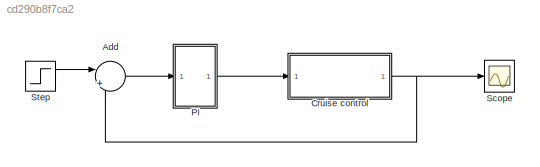
MODEL slx_cd290b8f7ca2
KIND model
CONFIG AbsTol = auto
CONFIG EnableMultiTasking = off
CONFIG FixedStep = auto
CONFIG MaxStep = auto
CONFIG MinStep = auto
CONFIG RelTol = 1e-3
CONFIG SampleTimeConstraint = Unconstrained
CONFIG SolverName = VariableStepAuto
CONFIG StartTime = 0.0
CONFIG StopTime = 120
WORKSPACE source: mxarray member
WORKSPACE Ki = 40
WORKSPACE Kp = 800
WORKSPACE b = 50
WORKSPACE m = 1000
WORKSPACE u = 500
BLOCK [Sum] Add
  Inputs = |+-
  Ports = [2, 1]
BLOCK [ModelReference] Cruise control 
  ModelNameDialog = Atomic_Subsystem0
  ModelReferenceVersion = 1.11
  Ports = [1, 1]
BLOCK [ModelReference] PI
  ModelNameDialog = PI
  ModelReferenceVersion = 1.16
  Ports = [1, 1]
BLOCK [Scope] Scope
  Floating = off
  NumInputPorts = 1
  Ports = [1]
  ScopeSpecificationString = Simulink.scopes.TimeScopeBlockCfg('CurrentConfiguration', extmgr.ConfigurationSet(extmgr.Configuration('Core','General UI',true),extmgr.Configuration('Core','Source UI',true),extmgr.Configuration('Sources','WiredSimulink',true),extmgr.Configuration('Visuals','Time Domain',true,'SerializedDisplays',{struct('MinYLimReal','-62.5','MaxYLimReal','562.5','YLabelReal','','MinYLimMag','0.00000','MaxYLimMa...<+1375ch>
BLOCK [Step] Step
  After = u
  SampleTime = 0
  Time = 0
LINE Add:1 -> PI:1
NET Cruise control :1 -> Add:2, Scope:1
LINE PI:1 -> Cruise control :1
LINE Step:1 -> Add:1
note: NET lines group one-source signal fan-out (src -> all destinations, sorted); 1:1 wires keep LINE
